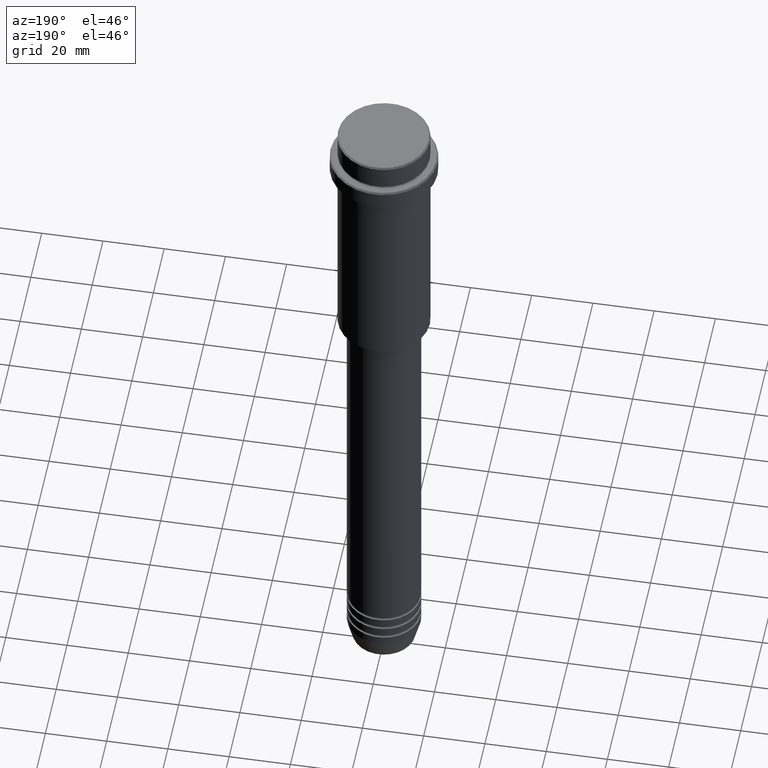
[diagram: clean part render]
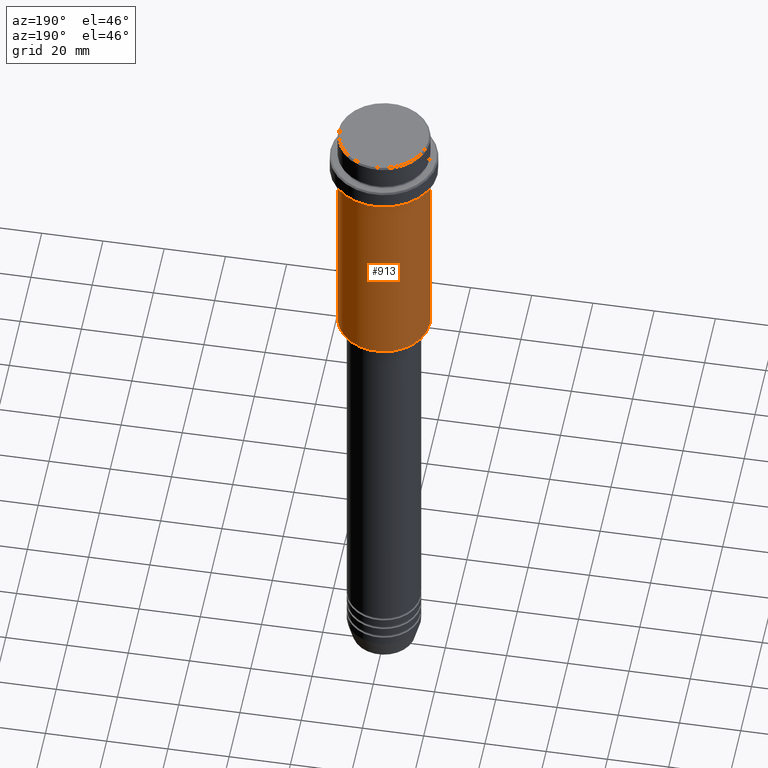
[diagram: same view with one face highlighted and labeled with its STEP entity id]
A machine part, auxiliary view. The second image highlights one B-rep face of the part: STEP entity #913.
In plain terms, the highlighted cylindrical surface (partial cylindrical patch) has radius 15 mm, axis along (-0, -0, 1).
Its self-contained STEP definition (entity closure, byte-faithful):
#49 = VERTEX_POINT ( 'NONE', #105 ) ;
#58 = VERTEX_POINT ( 'NONE', #877 ) ;
#105 = CARTESIAN_POINT ( 'NONE',  ( -15.00000000000000000, 1.836970198721029589E-15, -84.49999999999997158 ) ) ;
#219 = DIRECTION ( 'NONE',  ( -0.000000000000000000, -0.000000000000000000, 1.000000000000000000 ) ) ;
#314 = AXIS2_PLACEMENT_3D ( 'NONE', #667, #967, #455 ) ;
#340 = CYLINDRICAL_SURFACE ( 'NONE', #1025, 15.00000000000000000 ) ;
#352 = VERTEX_POINT ( 'NONE', #990 ) ;
#430 = EDGE_LOOP ( 'NONE', ( #649, #994, #638, #574 ) ) ;
#448 = CARTESIAN_POINT ( 'NONE',  ( 0.000000000000000000, 0.000000000000000000, 0.000000000000000000 ) ) ;
#455 = DIRECTION ( 'NONE',  ( 1.000000000000000000, 0.000000000000000000, 0.000000000000000000 ) ) ;
#510 = VERTEX_POINT ( 'NONE', #1051 ) ;
#525 = DIRECTION ( 'NONE',  ( -0.000000000000000000, -0.000000000000000000, 1.000000000000000000 ) ) ;
#574 = ORIENTED_EDGE ( 'NONE', *, *, #1148, .F. ) ;
#577 = AXIS2_PLACEMENT_3D ( 'NONE', #713, #525, #942 ) ;
#638 = ORIENTED_EDGE ( 'NONE', *, *, #970, .F. ) ;
#649 = ORIENTED_EDGE ( 'NONE', *, *, #742, .T. ) ;
#657 = DIRECTION ( 'NONE',  ( 1.000000000000000000, 0.000000000000000000, 0.000000000000000000 ) ) ;
#667 = CARTESIAN_POINT ( 'NONE',  ( 0.000000000000000000, 0.000000000000000000, -16.00000000000000000 ) ) ;
#713 = CARTESIAN_POINT ( 'NONE',  ( 0.000000000000000000, 0.000000000000000000, -84.49999999999997158 ) ) ;
#737 = CIRCLE ( 'NONE', #577, 15.00000000000000000 ) ;
#738 = VECTOR ( 'NONE', #1015, 1000.000000000000000 ) ;
#742 = EDGE_CURVE ( 'NONE', #352, #49, #737, .T. ) ;
#877 = CARTESIAN_POINT ( 'NONE',  ( -15.00000000000000355, 1.836970198721029983E-15, -16.00000000000000000 ) ) ;
#895 = LINE ( 'NONE', #1107, #1007 ) ;
#907 = CIRCLE ( 'NONE', #314, 15.00000000000000178 ) ;
#913 = ADVANCED_FACE ( 'NONE', ( #963 ), #340, .T. ) ;
#942 = DIRECTION ( 'NONE',  ( -1.000000000000000000, 0.000000000000000000, 0.000000000000000000 ) ) ;
#963 = FACE_OUTER_BOUND ( 'NONE', #430, .T. ) ;
#967 = DIRECTION ( 'NONE',  ( -0.000000000000000000, -0.000000000000000000, 1.000000000000000000 ) ) ;
#970 = EDGE_CURVE ( 'NONE', #510, #58, #907, .T. ) ;
#990 = CARTESIAN_POINT ( 'NONE',  ( 15.00000000000000000, 0.000000000000000000, -84.49999999999997158 ) ) ;
#994 = ORIENTED_EDGE ( 'NONE', *, *, #1094, .T. ) ;
#1007 = VECTOR ( 'NONE', #1343, 1000.000000000000000 ) ;
#1015 = DIRECTION ( 'NONE',  ( -0.000000000000000000, -0.000000000000000000, 1.000000000000000000 ) ) ;
#1025 = AXIS2_PLACEMENT_3D ( 'NONE', #448, #219, #657 ) ;
#1051 = CARTESIAN_POINT ( 'NONE',  ( 15.00000000000000178, 0.000000000000000000, -16.00000000000000000 ) ) ;
#1094 = EDGE_CURVE ( 'NONE', #49, #58, #1117, .T. ) ;
#1107 = CARTESIAN_POINT ( 'NONE',  ( 15.00000000000000000, 0.000000000000000000, 0.000000000000000000 ) ) ;
#1117 = LINE ( 'NONE', #1334, #738 ) ;
#1148 = EDGE_CURVE ( 'NONE', #352, #510, #895, .T. ) ;
#1334 = CARTESIAN_POINT ( 'NONE',  ( -15.00000000000000000, 1.836970198721029589E-15, 0.000000000000000000 ) ) ;
#1343 = DIRECTION ( 'NONE',  ( -0.000000000000000000, -0.000000000000000000, 1.000000000000000000 ) ) ;